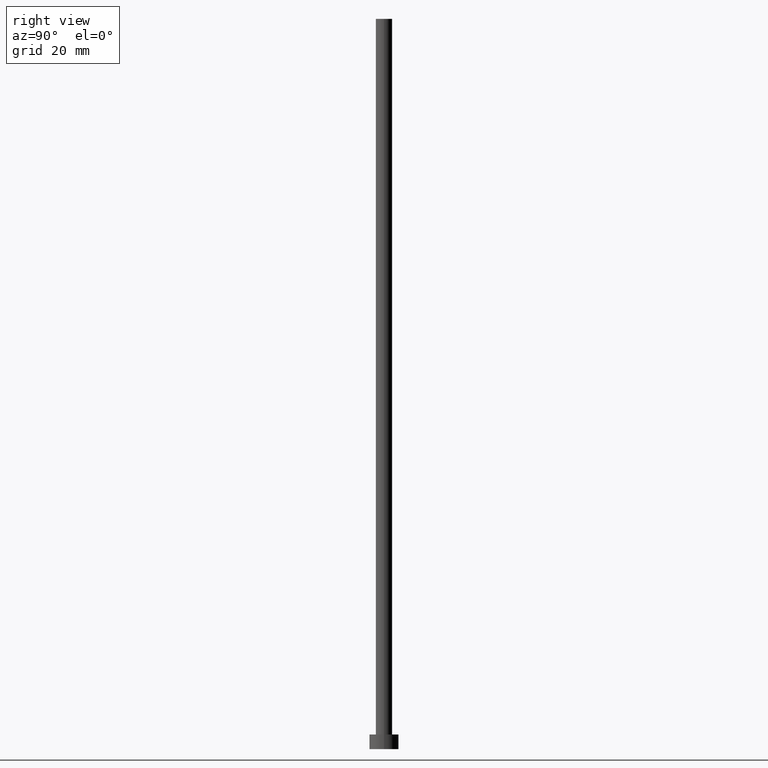
[diagram: clean part render]
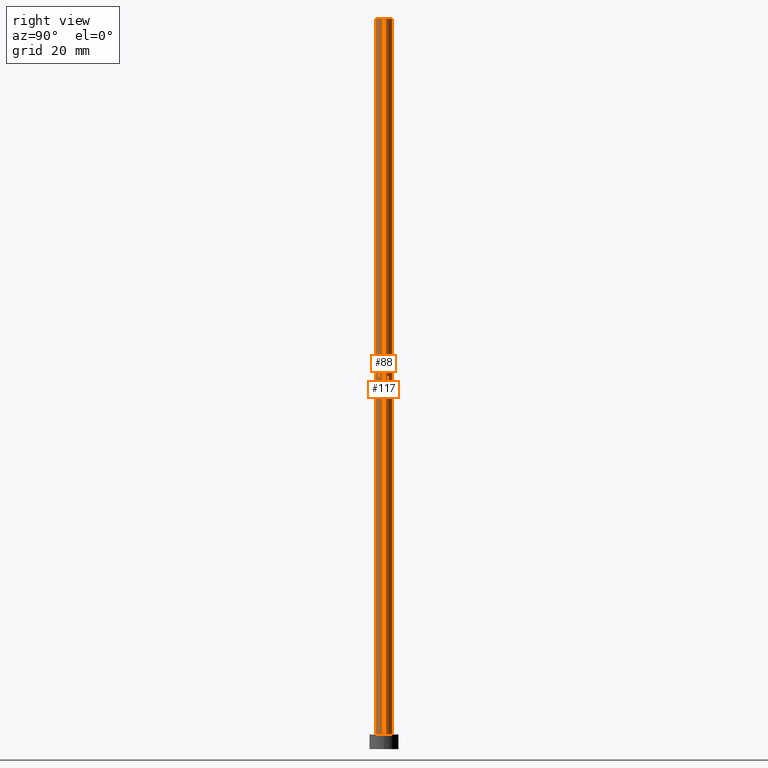
[diagram: same view with one multi-face feature highlighted, each face labeled with its STEP entity id]
A machine part, right view. The highlighted faces form ONE feature: a constant-radius fillet chain: 2 tangent blend faces with common blend radius 2.25 mm. The faces share edges in the B-rep.
Their STEP definitions:
[1] entity #117 (Cylinder):
#12 = VERTEX_POINT ( 'NONE', #183 ) ;
#21 = DIRECTION ( 'NONE',  ( 1.000000000000000000, 0.000000000000000000, 0.000000000000000000 ) ) ;
#23 = VERTEX_POINT ( 'NONE', #162 ) ;
#25 = DIRECTION ( 'NONE',  ( 0.000000000000000000, 0.000000000000000000, 1.000000000000000000 ) ) ;
#27 = CIRCLE ( 'NONE', #49, 2.250000000000000000 ) ;
#38 = CARTESIAN_POINT ( 'NONE',  ( -2.250000000000000000, 0.000000000000000000, 200.0000000000000000 ) ) ;
#49 = AXIS2_PLACEMENT_3D ( 'NONE', #194, #155, #251 ) ;
#53 = CYLINDRICAL_SURFACE ( 'NONE', #247, 2.250000000000000000 ) ;
#62 = ORIENTED_EDGE ( 'NONE', *, *, #91, .F. ) ;
#69 = VECTOR ( 'NONE', #118, 1000.000000000000000 ) ;
#71 = VERTEX_POINT ( 'NONE', #83 ) ;
#79 = DIRECTION ( 'NONE',  ( -0.000000000000000000, -0.000000000000000000, -1.000000000000000000 ) ) ;
#83 = CARTESIAN_POINT ( 'NONE',  ( -2.250000000000000000, 0.000000000000000000, 200.0000000000000000 ) ) ;
#91 = EDGE_CURVE ( 'NONE', #71, #12, #235, .T. ) ;
#106 = DIRECTION ( 'NONE',  ( -0.000000000000000000, -0.000000000000000000, -1.000000000000000000 ) ) ;
#116 = ORIENTED_EDGE ( 'NONE', *, *, #134, .T. ) ;
#117 = ADVANCED_FACE ( 'NONE', ( #217 ), #53, .T. ) ;
#118 = DIRECTION ( 'NONE',  ( -0.000000000000000000, -0.000000000000000000, -1.000000000000000000 ) ) ;
#134 = EDGE_CURVE ( 'NONE', #143, #23, #174, .T. ) ;
#143 = VERTEX_POINT ( 'NONE', #214 ) ;
#144 = AXIS2_PLACEMENT_3D ( 'NONE', #196, #25, #21 ) ;
#149 = CIRCLE ( 'NONE', #144, 2.250000000000000000 ) ;
#150 = EDGE_CURVE ( 'NONE', #23, #12, #27, .T. ) ;
#154 = CARTESIAN_POINT ( 'NONE',  ( 2.250000000000000000, 2.755455298081544285E-16, 200.0000000000000000 ) ) ;
#155 = DIRECTION ( 'NONE',  ( 0.000000000000000000, 0.000000000000000000, 1.000000000000000000 ) ) ;
#162 = CARTESIAN_POINT ( 'NONE',  ( 2.250000000000000000, 2.755455298081544285E-16, 4.000000000000000000 ) ) ;
#164 = EDGE_CURVE ( 'NONE', #143, #71, #149, .T. ) ;
#174 = LINE ( 'NONE', #154, #69 ) ;
#179 = DIRECTION ( 'NONE',  ( -1.000000000000000000, 0.000000000000000000, 0.000000000000000000 ) ) ;
#183 = CARTESIAN_POINT ( 'NONE',  ( -2.250000000000000000, 0.000000000000000000, 4.000000000000000000 ) ) ;
#193 = CARTESIAN_POINT ( 'NONE',  ( 0.000000000000000000, 0.000000000000000000, 200.0000000000000000 ) ) ;
#194 = CARTESIAN_POINT ( 'NONE',  ( 0.000000000000000000, 0.000000000000000000, 4.000000000000000000 ) ) ;
#196 = CARTESIAN_POINT ( 'NONE',  ( 0.000000000000000000, 0.000000000000000000, 200.0000000000000000 ) ) ;
#203 = EDGE_LOOP ( 'NONE', ( #216, #116, #222, #62 ) ) ;
#214 = CARTESIAN_POINT ( 'NONE',  ( 2.250000000000000000, 2.755455298081544285E-16, 200.0000000000000000 ) ) ;
#216 = ORIENTED_EDGE ( 'NONE', *, *, #164, .F. ) ;
#217 = FACE_OUTER_BOUND ( 'NONE', #203, .T. ) ;
#222 = ORIENTED_EDGE ( 'NONE', *, *, #150, .T. ) ;
#227 = VECTOR ( 'NONE', #79, 1000.000000000000000 ) ;
#235 = LINE ( 'NONE', #38, #227 ) ;
#247 = AXIS2_PLACEMENT_3D ( 'NONE', #193, #106, #179 ) ;
#251 = DIRECTION ( 'NONE',  ( 1.000000000000000000, 0.000000000000000000, 0.000000000000000000 ) ) ;
[2] entity #88 (Cylinder):
#12 = VERTEX_POINT ( 'NONE', #183 ) ;
#20 = CARTESIAN_POINT ( 'NONE',  ( 0.000000000000000000, 0.000000000000000000, 4.000000000000000000 ) ) ;
#23 = VERTEX_POINT ( 'NONE', #162 ) ;
#30 = AXIS2_PLACEMENT_3D ( 'NONE', #20, #136, #137 ) ;
#38 = CARTESIAN_POINT ( 'NONE',  ( -2.250000000000000000, 0.000000000000000000, 200.0000000000000000 ) ) ;
#40 = ORIENTED_EDGE ( 'NONE', *, *, #230, .F. ) ;
#58 = DIRECTION ( 'NONE',  ( -1.000000000000000000, 0.000000000000000000, 0.000000000000000000 ) ) ;
#60 = CARTESIAN_POINT ( 'NONE',  ( 0.000000000000000000, 0.000000000000000000, 200.0000000000000000 ) ) ;
#66 = CIRCLE ( 'NONE', #30, 2.250000000000000000 ) ;
#69 = VECTOR ( 'NONE', #118, 1000.000000000000000 ) ;
#71 = VERTEX_POINT ( 'NONE', #83 ) ;
#79 = DIRECTION ( 'NONE',  ( -0.000000000000000000, -0.000000000000000000, -1.000000000000000000 ) ) ;
#83 = CARTESIAN_POINT ( 'NONE',  ( -2.250000000000000000, 0.000000000000000000, 200.0000000000000000 ) ) ;
#84 = FACE_OUTER_BOUND ( 'NONE', #189, .T. ) ;
#87 = ORIENTED_EDGE ( 'NONE', *, *, #91, .T. ) ;
#88 = ADVANCED_FACE ( 'NONE', ( #84 ), #211, .T. ) ;
#91 = EDGE_CURVE ( 'NONE', #71, #12, #235, .T. ) ;
#93 = EDGE_CURVE ( 'NONE', #12, #23, #66, .T. ) ;
#102 = AXIS2_PLACEMENT_3D ( 'NONE', #141, #219, #163 ) ;
#104 = DIRECTION ( 'NONE',  ( -0.000000000000000000, -0.000000000000000000, -1.000000000000000000 ) ) ;
#118 = DIRECTION ( 'NONE',  ( -0.000000000000000000, -0.000000000000000000, -1.000000000000000000 ) ) ;
#134 = EDGE_CURVE ( 'NONE', #143, #23, #174, .T. ) ;
#136 = DIRECTION ( 'NONE',  ( 0.000000000000000000, 0.000000000000000000, 1.000000000000000000 ) ) ;
#137 = DIRECTION ( 'NONE',  ( 1.000000000000000000, 0.000000000000000000, 0.000000000000000000 ) ) ;
#141 = CARTESIAN_POINT ( 'NONE',  ( 0.000000000000000000, 0.000000000000000000, 200.0000000000000000 ) ) ;
#143 = VERTEX_POINT ( 'NONE', #214 ) ;
#153 = ORIENTED_EDGE ( 'NONE', *, *, #134, .F. ) ;
#154 = CARTESIAN_POINT ( 'NONE',  ( 2.250000000000000000, 2.755455298081544285E-16, 200.0000000000000000 ) ) ;
#156 = CIRCLE ( 'NONE', #102, 2.250000000000000000 ) ;
#162 = CARTESIAN_POINT ( 'NONE',  ( 2.250000000000000000, 2.755455298081544285E-16, 4.000000000000000000 ) ) ;
#163 = DIRECTION ( 'NONE',  ( 1.000000000000000000, 0.000000000000000000, 0.000000000000000000 ) ) ;
#174 = LINE ( 'NONE', #154, #69 ) ;
#183 = CARTESIAN_POINT ( 'NONE',  ( -2.250000000000000000, 0.000000000000000000, 4.000000000000000000 ) ) ;
#189 = EDGE_LOOP ( 'NONE', ( #153, #40, #87, #254 ) ) ;
#211 = CYLINDRICAL_SURFACE ( 'NONE', #245, 2.250000000000000000 ) ;
#214 = CARTESIAN_POINT ( 'NONE',  ( 2.250000000000000000, 2.755455298081544285E-16, 200.0000000000000000 ) ) ;
#219 = DIRECTION ( 'NONE',  ( 0.000000000000000000, 0.000000000000000000, 1.000000000000000000 ) ) ;
#227 = VECTOR ( 'NONE', #79, 1000.000000000000000 ) ;
#230 = EDGE_CURVE ( 'NONE', #71, #143, #156, .T. ) ;
#235 = LINE ( 'NONE', #38, #227 ) ;
#245 = AXIS2_PLACEMENT_3D ( 'NONE', #60, #104, #58 ) ;
#254 = ORIENTED_EDGE ( 'NONE', *, *, #93, .T. ) ;